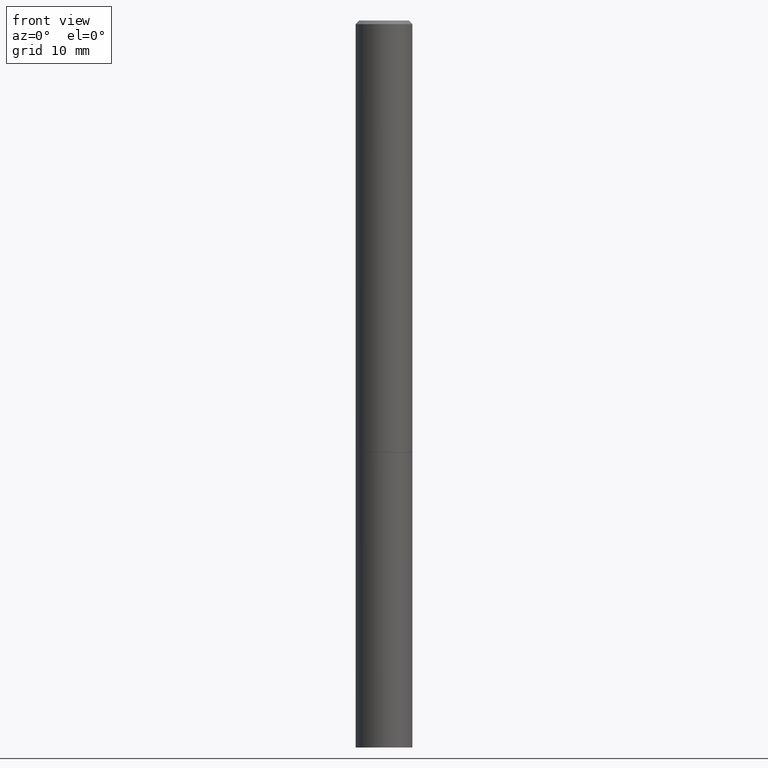
[diagram: clean part render]
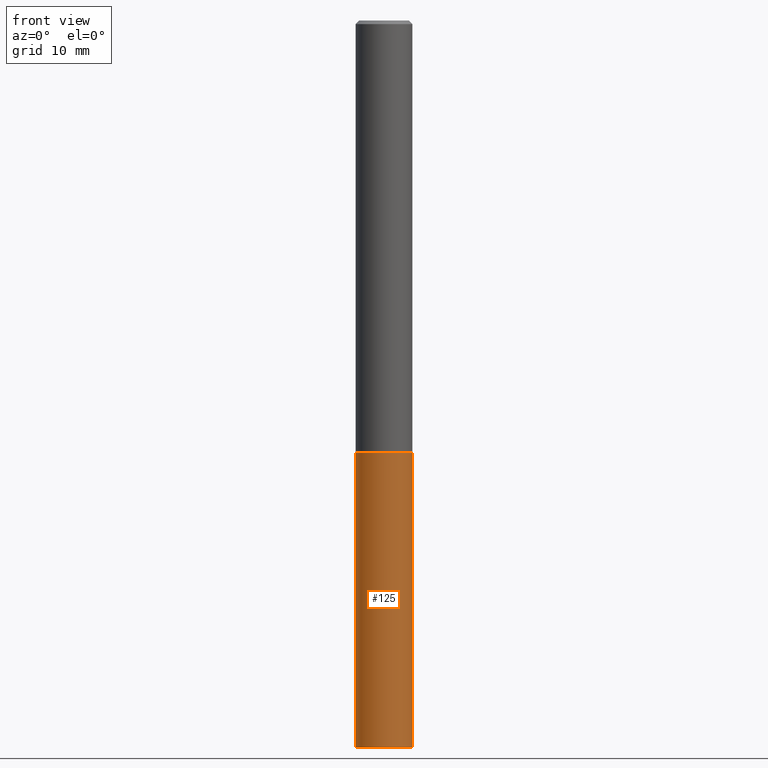
[diagram: same view with one face highlighted and labeled with its STEP entity id]
A machine part, front view. The second image highlights one B-rep face of the part: STEP entity #125.
In plain terms, the highlighted cylindrical surface (edge-blend (fillet) strip) has radius 3.9688 mm, axis along (-0, 0, 1).
Its self-contained STEP definition (entity closure, byte-faithful):
#32 = CARTESIAN_POINT ( 'NONE',  ( 0.1562500000000000000, -1.091087918388479174E-15, 7.619026212181150377E-30 ) ) ;
#50 = DIRECTION ( 'NONE',  ( -2.445468806185136597E-29, 3.491481338843145583E-15, 1.000000000000000000 ) ) ;
#52 = DIRECTION ( 'NONE',  ( -2.445468806185136877E-29, 3.491481338843145188E-15, 1.000000000000000000 ) ) ;
#57 = LINE ( 'NONE', #32, #298 ) ;
#61 = EDGE_CURVE ( 'NONE', #62, #245, #119, .T. ) ;
#62 = VERTEX_POINT ( 'NONE', #215 ) ;
#67 = CARTESIAN_POINT ( 'NONE',  ( -0.1562500000000000000, -1.001887374293736968E-14, -2.375000000000000000 ) ) ;
#72 = ORIENTED_EDGE ( 'NONE', *, *, #181, .T. ) ;
#82 = DIRECTION ( 'NONE',  ( -2.445468806185136597E-29, 3.491481338843145583E-15, 1.000000000000000000 ) ) ;
#89 = CYLINDRICAL_SURFACE ( 'NONE', #219, 0.1562500000000000000 ) ;
#103 = DIRECTION ( 'NONE',  ( 1.000000000000000000, -6.982962677686262766E-15, 0.000000000000000000 ) ) ;
#111 = CARTESIAN_POINT ( 'NONE',  ( 5.807988414689699417E-29, -8.292268179752470118E-15, -2.375000000000000000 ) ) ;
#119 = CIRCLE ( 'NONE', #243, 0.1562500000000000000 ) ;
#121 = CARTESIAN_POINT ( 'NONE',  ( -0.1562500000000000000, 1.110223024625156540E-15, -7.685836078523291160E-30 ) ) ;
#125 = ADVANCED_FACE ( 'NONE', ( #260 ), #89, .T. ) ;
#131 = ORIENTED_EDGE ( 'NONE', *, *, #61, .T. ) ;
#133 = ORIENTED_EDGE ( 'NONE', *, *, #291, .F. ) ;
#136 = VECTOR ( 'NONE', #202, 39.37007874015748143 ) ;
#141 = EDGE_CURVE ( 'NONE', #324, #358, #205, .T. ) ;
#143 = LINE ( 'NONE', #121, #136 ) ;
#181 = EDGE_CURVE ( 'NONE', #245, #358, #57, .T. ) ;
#202 = DIRECTION ( 'NONE',  ( -2.445468806185136877E-29, 3.491481338843145188E-15, 1.000000000000000000 ) ) ;
#205 = CIRCLE ( 'NONE', #259, 0.1562500000000000000 ) ;
#213 = CARTESIAN_POINT ( 'NONE',  ( 9.781875224740546387E-29, -1.396592535537258233E-14, -4.000000000000000000 ) ) ;
#215 = CARTESIAN_POINT ( 'NONE',  ( -0.1562500000000000000, -1.001887374293736968E-14, -4.000000000000000000 ) ) ;
#219 = AXIS2_PLACEMENT_3D ( 'NONE', #247, #82, #341 ) ;
#243 = AXIS2_PLACEMENT_3D ( 'NONE', #213, #50, #103 ) ;
#245 = VERTEX_POINT ( 'NONE', #284 ) ;
#247 = CARTESIAN_POINT ( 'NONE',  ( 0.000000000000000000, 0.000000000000000000, 0.000000000000000000 ) ) ;
#259 = AXIS2_PLACEMENT_3D ( 'NONE', #111, #314, #363 ) ;
#260 = FACE_OUTER_BOUND ( 'NONE', #344, .T. ) ;
#283 = ORIENTED_EDGE ( 'NONE', *, *, #141, .F. ) ;
#284 = CARTESIAN_POINT ( 'NONE',  ( 0.1562500000000000000, -1.505701327376106229E-14, -4.000000000000000000 ) ) ;
#291 = EDGE_CURVE ( 'NONE', #62, #324, #143, .T. ) ;
#295 = CARTESIAN_POINT ( 'NONE',  ( 0.1562500000000000000, -9.383356098140948502E-15, -2.375000000000000000 ) ) ;
#298 = VECTOR ( 'NONE', #52, 39.37007874015748143 ) ;
#314 = DIRECTION ( 'NONE',  ( -2.445468806185136597E-29, 3.491481338843145583E-15, 1.000000000000000000 ) ) ;
#324 = VERTEX_POINT ( 'NONE', #67 ) ;
#341 = DIRECTION ( 'NONE',  ( 1.000000000000000000, -6.982962677686266711E-15, 4.876176775795936353E-29 ) ) ;
#344 = EDGE_LOOP ( 'NONE', ( #133, #131, #72, #283 ) ) ;
#358 = VERTEX_POINT ( 'NONE', #295 ) ;
#363 = DIRECTION ( 'NONE',  ( 1.000000000000000000, -6.982962677686262766E-15, 0.000000000000000000 ) ) ;